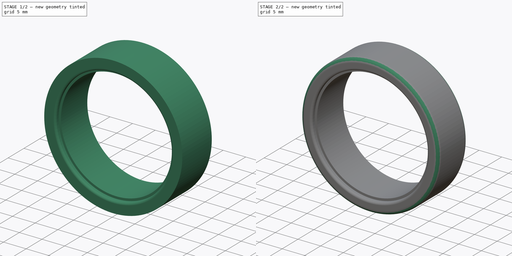
[diagram: build sequence overview — one tinted view per stage of 2, left to right]
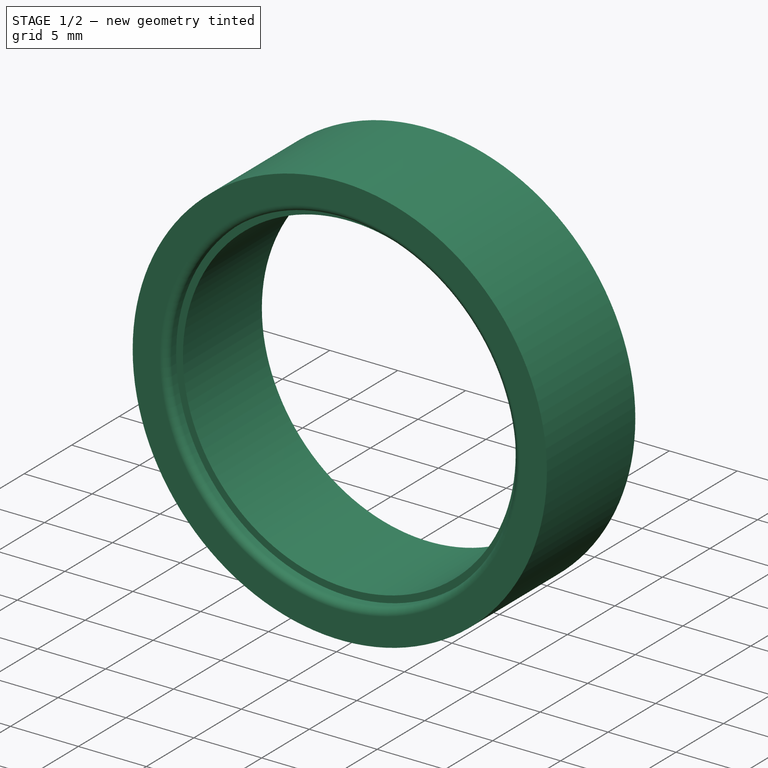
[diagram: stage 1 of 2 — iso view after this stage's code; geometry added in this stage tinted green]
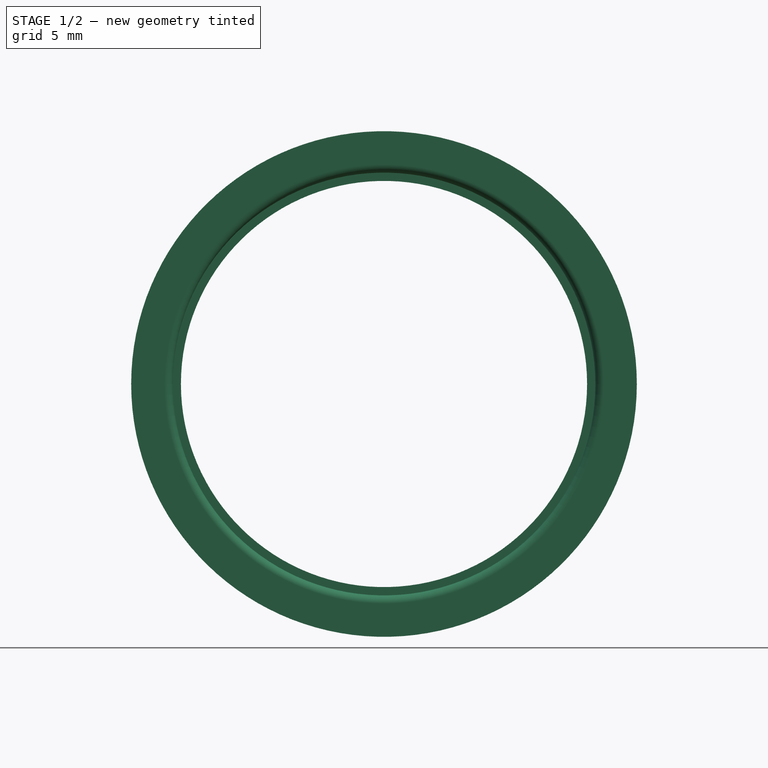
[diagram: stage 1 of 2 — front view after this stage's code; geometry added in this stage tinted green]
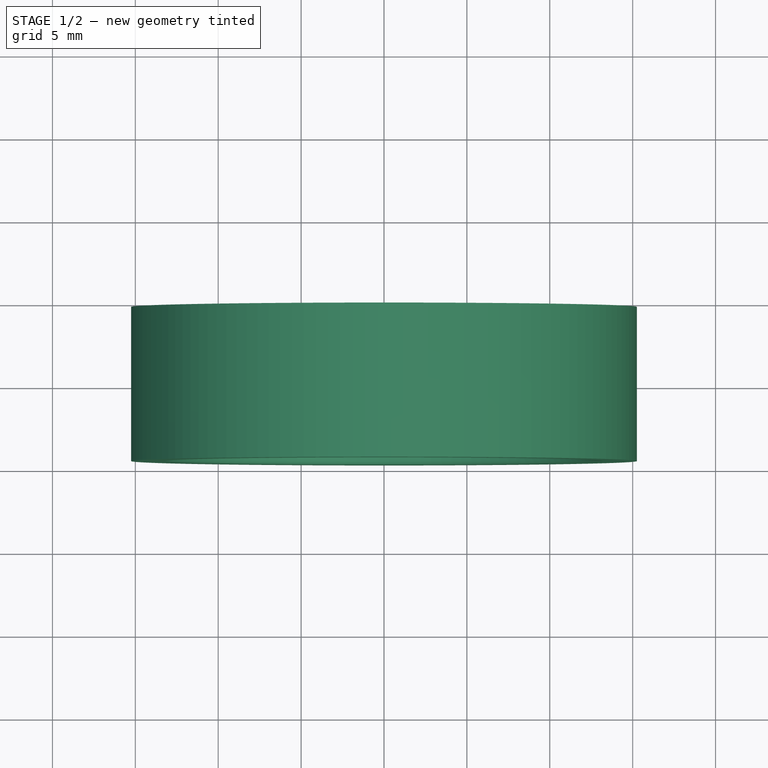
[diagram: stage 1 of 2 — top view after this stage's code; geometry added in this stage tinted green]
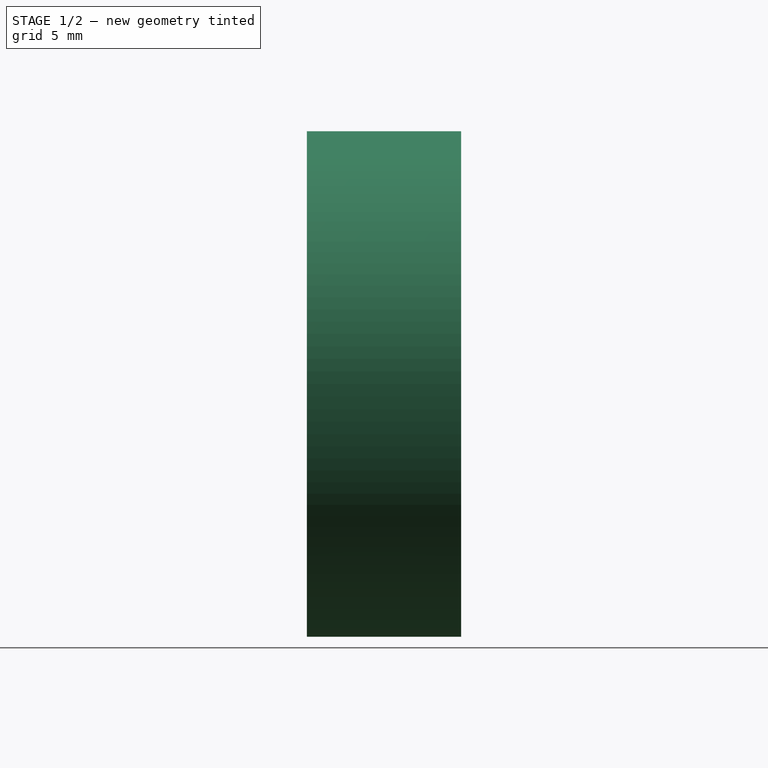
[diagram: stage 1 of 2 — right view after this stage's code; geometry added in this stage tinted green]
FCSTD DOCUMENT  (FreeCAD 1.0R39285 (Git))
Label: Tire
License: All rights reserved
LicenseURL: https://en.wikipedia.org/wiki/All_rights_reserved
objects: PartDesign::Fillet×2, Sketcher::SketchObject×1, PartDesign::Revolution×1, App::Link×1, PartDesign::Body×1
note: 12 computed .brp shape members not serialized (recipe doc carries the construction recipe); baked Part::Feature solids carry a one-line shape summary decoded from their .brp
EXTERNAL_REF file=Dished5SpokeRim.FCStd obj=Link

FEATURE [Sketcher::SketchObject] Sketch
  ArcFitTolerance = 1e-06
  AttachmentSupport = -> [XY_Plane]
  FullyConstrained = false
  MakeInternals = false
  MapMode = 5
  expr: Constraints[15] = <<Wheel>>.Diameter
  expr: Constraints[31] = <<Wheel>>.TireThicnkess
  expr: Constraints[33] = <<Wheel>>.SingleThickness - <<Wheel>>.StemPoke
  expr: Constraints[35] = <<Wheel>>.TireBeadWidth
  expr: Constraints[36] = <<Wheel>>.RimLipThickness
  sketch-geometry (16):
    g0: LineSegment [constr] StartX=-1.3 StartY=6.15 StartZ=0 EndX=-1.3 EndY=-4.65 EndZ=0
    g1: LineSegment [constr] StartX=-1.3 StartY=-4.65 StartZ=0 EndX=-15.25 EndY=-4.65 EndZ=0
    g2: LineSegment [constr] StartX=-15.25 StartY=-4.65 StartZ=0 EndX=-15.25 EndY=4.65 EndZ=0
    g3: LineSegment [constr] StartX=-15.25 StartY=4.65 StartZ=0 EndX=-3.25 EndY=4.65 EndZ=0
    g4: LineSegment [constr] StartX=-3.25 StartY=4.65 StartZ=0 EndX=-3.25 EndY=6.15 EndZ=0
    g5: LineSegment [constr] StartX=-3.25 StartY=6.15 StartZ=0 EndX=-1.3 EndY=6.15 EndZ=0
    g6: LineSegment StartX=15.25 StartY=-4.65 StartZ=0 EndX=15.25 EndY=4.65 EndZ=0
    g7: LineSegment [constr] StartX=15.25 StartY=4.65 StartZ=0 EndX=12.75 EndY=4.65 EndZ=0
    g8: LineSegment [constr] StartX=12.75 StartY=4.65 StartZ=0 EndX=12.75 EndY=3.65 EndZ=0
    g9: LineSegment [constr] StartX=12.75 StartY=3.65 StartZ=0 EndX=12.25 EndY=3.65 EndZ=0
    g10: LineSegment [constr] StartX=12.25 StartY=3.65 StartZ=0 EndX=12.25 EndY=-3.65 EndZ=0
    g11: LineSegment StartX=12.25 StartY=-3.65 StartZ=0 EndX=12.75 EndY=-3.65 EndZ=0
    g12: LineSegment StartX=12.75 StartY=-3.65 StartZ=0 EndX=12.75 EndY=-4.65 EndZ=0
    g13: LineSegment StartX=12.75 StartY=-4.65 StartZ=0 EndX=15.25 EndY=-4.65 EndZ=0
    g14: LineSegment StartX=12.25 StartY=-3.65 StartZ=0 EndX=12.25 EndY=4.65 EndZ=0
    g15: LineSegment StartX=12.25 StartY=4.65 StartZ=0 EndX=15.25 EndY=4.65 EndZ=0
  constraints (44):
    c: Vertical(g0)
    c: Coincident(g0,g1)
    c: Horizontal(g1)
    c: Coincident(g1,g2)
    c: Vertical(g2)
    c: Coincident(g2,g3)
    c: Horizontal(g3)
    c: Coincident(g3,g4)
    c: Vertical(g4)
    c: Coincident(g4,g5)
    c: Coincident(g5,g0)
    c: Horizontal(g5)
    c: Coincident(g6,g7)
    c: Horizontal(g7)
    c: Equal(g2,g6)
    c: DistanceX(g1,g6) = 30.5
    c: Symmetric(g6,g6,g-1)
    c: Coincident(g7,g8)
    c: Coincident(g8,g9)
    c: Horizontal(g9)
    c: Coincident(g9,g10)
    c: Vertical(g10)
    c: Coincident(g10,g11)
    c: Horizontal(g11)
    c: Coincident(g11,g12)
    c: Vertical(g12)
    c: Coincident(g12,g13)
    c: Coincident(g13,g6)
    c: Horizontal(g13)
    c: Vertical(g8)
    c: Equal(g8,g12)
    c: Distance(g13,g13) = 2.5
    c: Symmetric(g1,g6,g-2)
    c: DistanceY(g6,g6) = 9.3
    c: Equal(g13,g7)
    c: DistanceX(g11,g11) = 0.5
    c: DistanceY(g12,g12) = 1
    c: Coincident(g10,g14)
    c: Vertical(g14)
    c: Coincident(g14,g15)
    c: Coincident(g15,g6)
    c: Horizontal(g15)
    c: DistanceX(g-1,g12) = 12.75
    c: DistanceX(g-1,g10) = 12.25
FEATURE [PartDesign::Revolution] Revolution
  Angle = 360
  Angle2 = 60
  Axis = (0,1,0)
  Base = (0,0,0)
  Profile = -> Sketch
  ReferenceAxis = -> Sketch [V_Axis]
  Refine = true
  Reversed = true
  Suppressed = false
  Type = 0
FEATURE [PartDesign::Fillet] Fillet
  Base = -> Revolution [Edge3]
  BaseFeature = -> Revolution
  Radius = 0.5
  Refine = true
  SupportTransform = false
  Suppressed = false
  UseAllEdges = false
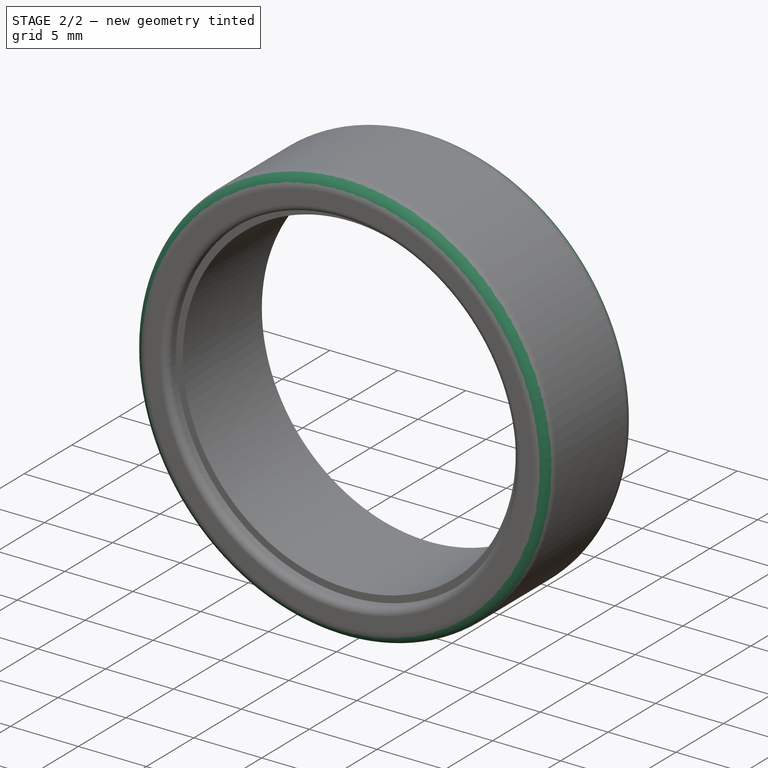
[diagram: stage 2 of 2 — iso view after this stage's code; geometry added in this stage tinted green]
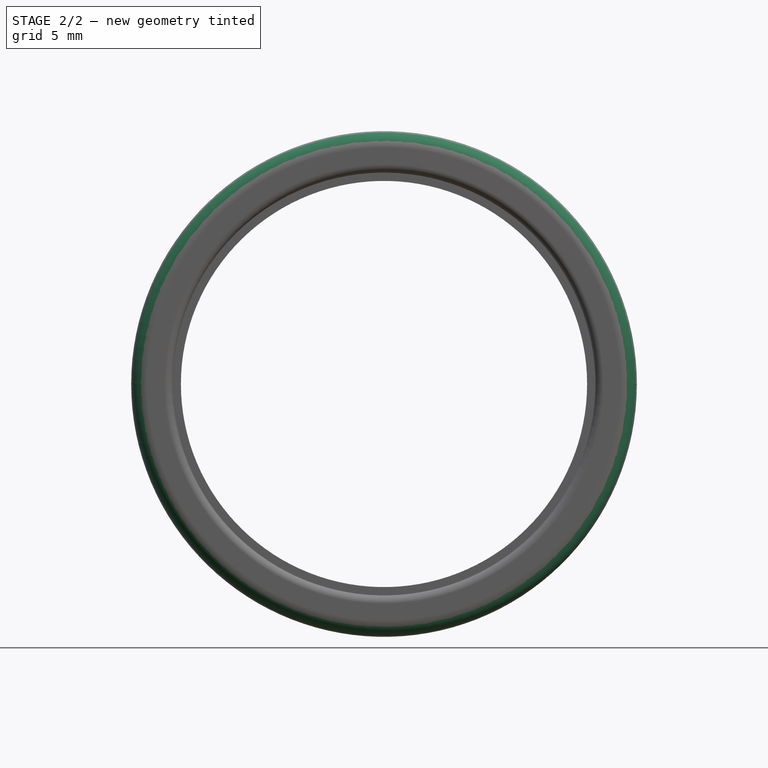
[diagram: stage 2 of 2 — front view after this stage's code; geometry added in this stage tinted green]
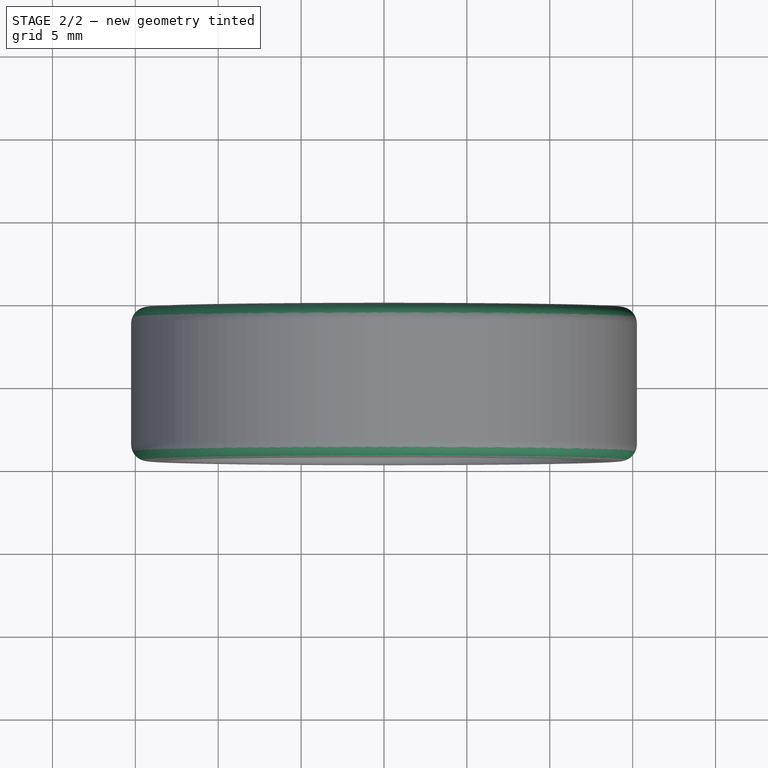
[diagram: stage 2 of 2 — top view after this stage's code; geometry added in this stage tinted green]
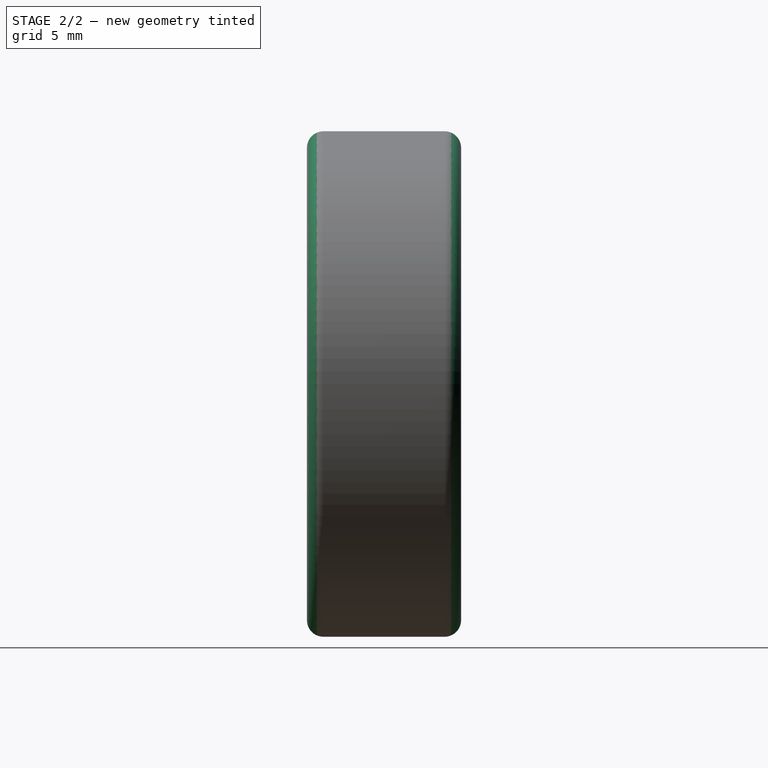
[diagram: stage 2 of 2 — right view after this stage's code; geometry added in this stage tinted green]
FEATURE [App::Link] Link001  label="Wheel"
  LinkedObject = -> <external Dished5SpokeRim.FCStd>#Link
FEATURE [PartDesign::Fillet] Fillet001
  Base = -> Fillet [Edge10,Edge7]
  BaseFeature = -> Fillet
  Radius = 1
  Refine = true
  SupportTransform = false
  Suppressed = false
  UseAllEdges = false
FEATURE [PartDesign::Body] Body  label="SingleTire"
  AllowCompound = false
  Group = -> [Sketch,Revolution,Fillet,Fillet001]
  Origin = -> Origin
  Tip = -> Fillet001
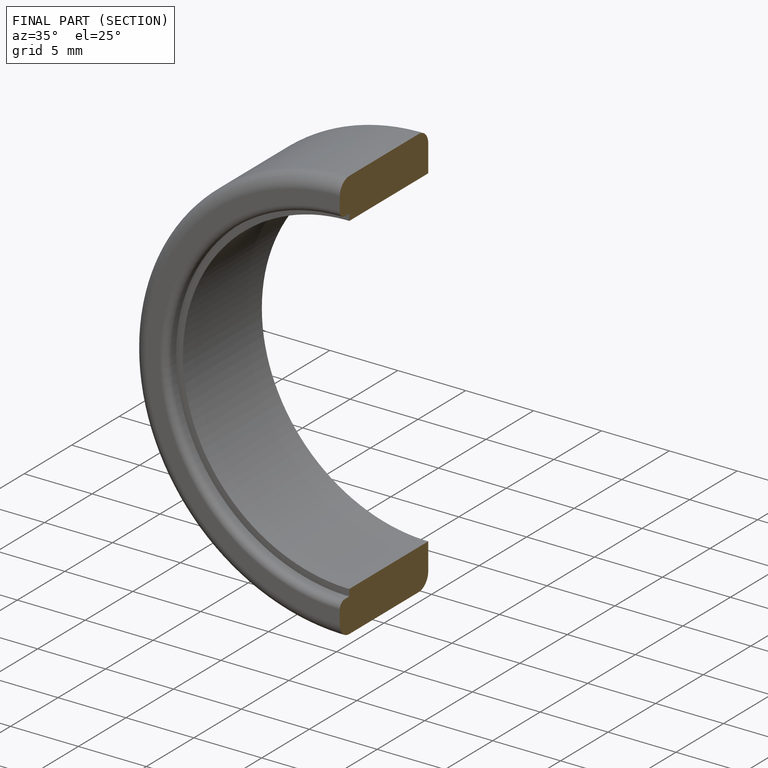
[diagram: finished part — half-section view (interior)]
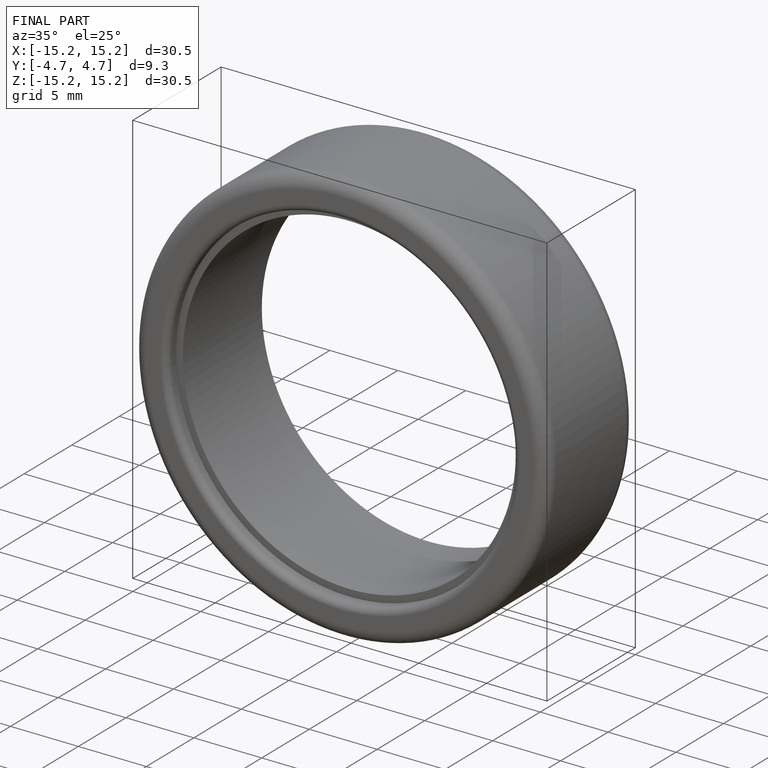
[diagram: finished part — iso view with bounding-box wireframe]
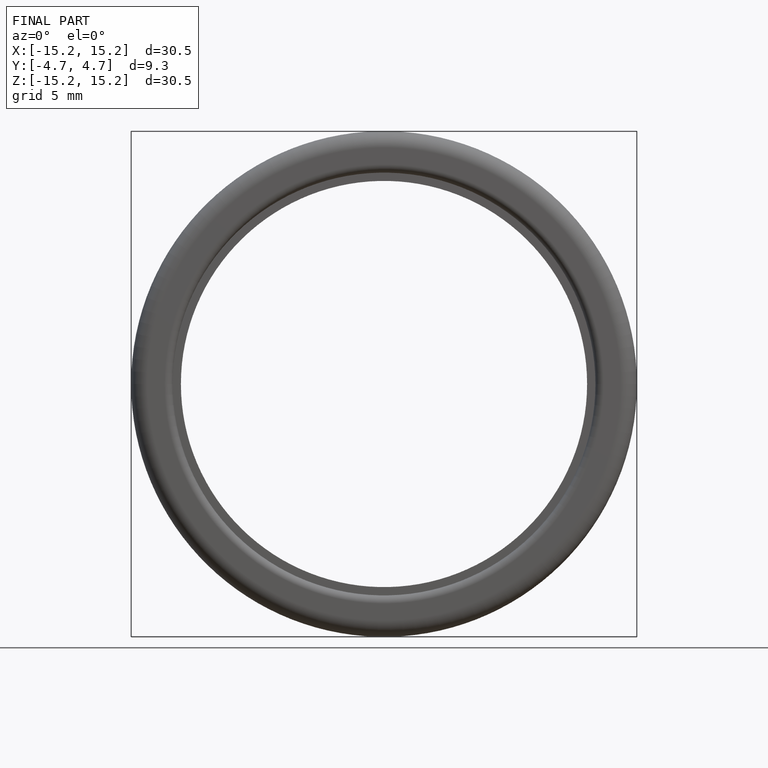
[diagram: finished part — front view with bounding-box wireframe]
